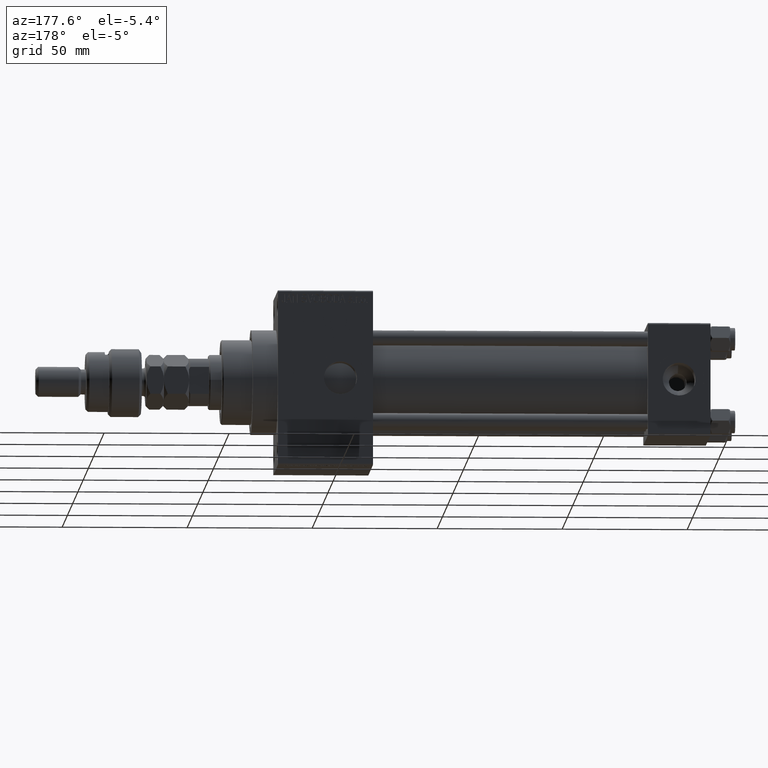
[diagram: clean part render]
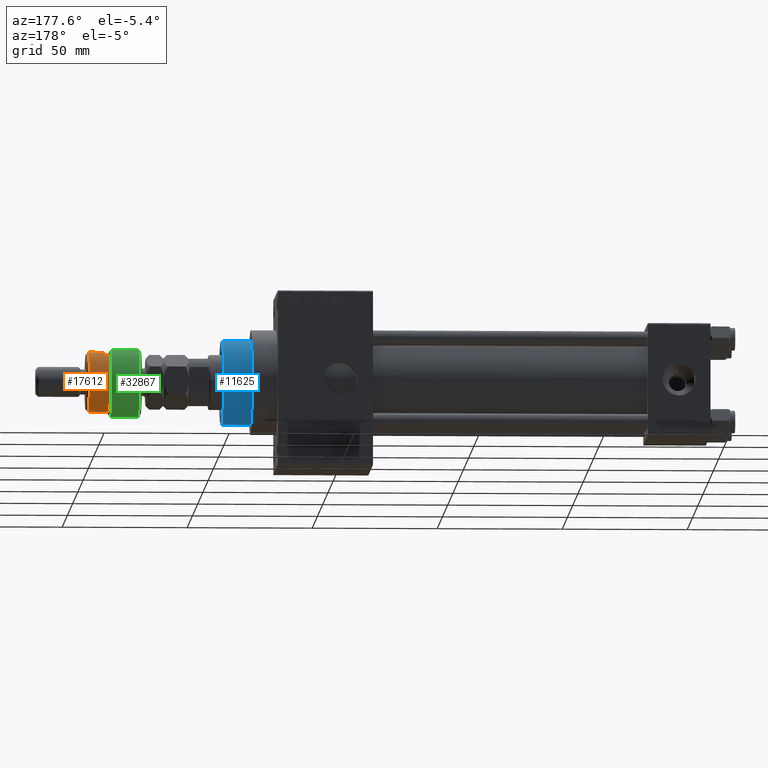
[diagram: same view with three faces highlighted in distinct colors, each labeled with its STEP entity id]
A machine part, auxiliary view with three faces highlighted in distinct colors.
Their STEP definitions:

[orange] entity #17612 — the highlighted cylindrical surface (edge-blend (fillet) strip) has radius 12 mm, axis along (-1, -0, 0).
#723 = CARTESIAN_POINT ( 'NONE',  ( -10.39230484541326760, 6.000000000000000000, 22.00000000000000000 ) ) ;
#1231 = CARTESIAN_POINT ( 'NONE',  ( 0.000000000000000000, 0.000000000000000000, 22.00000000000000000 ) ) ;
#1425 = EDGE_CURVE ( 'NONE', #29625, #15161, #12887, .T. ) ;
#3924 = CARTESIAN_POINT ( 'NONE',  ( -12.00000000000000178, 0.000000000000000000, 14.50000000000000000 ) ) ;
#4582 = AXIS2_PLACEMENT_3D ( 'NONE', #45040, #36900, #9298 ) ;
#4782 = DIRECTION ( 'NONE',  ( 0.000000000000000000, 0.000000000000000000, 1.000000000000000000 ) ) ;
#5032 = DIRECTION ( 'NONE',  ( 1.000000000000000000, 0.000000000000000000, 0.000000000000000000 ) ) ;
#5167 = FACE_OUTER_BOUND ( 'NONE', #24459, .T. ) ;
#9000 = CARTESIAN_POINT ( 'NONE',  ( 0.000000000000000000, 0.000000000000000000, 20.99999999999998224 ) ) ;
#9298 = DIRECTION ( 'NONE',  ( -1.000000000000000000, 0.000000000000000000, 0.000000000000000000 ) ) ;
#10669 = VERTEX_POINT ( 'NONE', #50707 ) ;
#12887 = CIRCLE ( 'NONE', #4582, 12.00000000000000178 ) ;
#13342 = CYLINDRICAL_SURFACE ( 'NONE', #22959, 12.00000000000000178 ) ;
#14201 = CARTESIAN_POINT ( 'NONE',  ( -12.00000000000000178, 0.000000000000000000, 20.99999999999998224 ) ) ;
#14847 = CARTESIAN_POINT ( 'NONE',  ( 12.00000000000000178, 1.469576158976824144E-15, 22.00000000000000000 ) ) ;
#15161 = VERTEX_POINT ( 'NONE', #39194 ) ;
#17612 = ADVANCED_FACE ( 'NONE', ( #5167 ), #13342, .T. ) ;
#18095 = ORIENTED_EDGE ( 'NONE', *, *, #19518, .F. ) ;
#19518 = EDGE_CURVE ( 'NONE', #30460, #29625, #51656, .T. ) ;
#20677 = VECTOR ( 'NONE', #31640, 1000.000000000000000 ) ;
#22959 = AXIS2_PLACEMENT_3D ( 'NONE', #1231, #29365, #25951 ) ;
#23160 = ORIENTED_EDGE ( 'NONE', *, *, #48698, .T. ) ;
#23578 = DIRECTION ( 'NONE',  ( -0.000000000000000000, -0.000000000000000000, -1.000000000000000000 ) ) ;
#24459 = EDGE_LOOP ( 'NONE', ( #26545, #23160, #25789, #42015, #40141, #18095 ) ) ;
#25044 = DIRECTION ( 'NONE',  ( 0.000000000000000000, 0.000000000000000000, -1.000000000000000000 ) ) ;
#25593 = VECTOR ( 'NONE', #29120, 1000.000000000000000 ) ;
#25789 = ORIENTED_EDGE ( 'NONE', *, *, #41217, .T. ) ;
#25951 = DIRECTION ( 'NONE',  ( -1.000000000000000000, 0.000000000000000000, 0.000000000000000000 ) ) ;
#26441 = VERTEX_POINT ( 'NONE', #46745 ) ;
#26545 = ORIENTED_EDGE ( 'NONE', *, *, #35900, .T. ) ;
#28466 = CARTESIAN_POINT ( 'NONE',  ( -10.39230484541326760, 6.000000000000000000, 13.00000000000000000 ) ) ;
#28710 = DIRECTION ( 'NONE',  ( 1.000000000000000000, 0.000000000000000000, 0.000000000000000000 ) ) ;
#29120 = DIRECTION ( 'NONE',  ( 0.000000000000000000, 0.000000000000000000, 1.000000000000000000 ) ) ;
#29365 = DIRECTION ( 'NONE',  ( -0.000000000000000000, -0.000000000000000000, -1.000000000000000000 ) ) ;
#29625 = VERTEX_POINT ( 'NONE', #3924 ) ;
#30460 = VERTEX_POINT ( 'NONE', #14201 ) ;
#31640 = DIRECTION ( 'NONE',  ( -0.000000000000000000, -0.000000000000000000, -1.000000000000000000 ) ) ;
#31888 = LINE ( 'NONE', #14847, #20677 ) ;
#35127 = CARTESIAN_POINT ( 'NONE',  ( -12.00000000000000178, 0.000000000000000000, 22.00000000000000000 ) ) ;
#35596 = AXIS2_PLACEMENT_3D ( 'NONE', #48398, #4782, #28710 ) ;
#35900 = EDGE_CURVE ( 'NONE', #30460, #26441, #49102, .T. ) ;
#36900 = DIRECTION ( 'NONE',  ( 0.000000000000000000, 0.000000000000000000, -1.000000000000000000 ) ) ;
#37732 = LINE ( 'NONE', #723, #25593 ) ;
#39194 = CARTESIAN_POINT ( 'NONE',  ( -10.39230484541326582, 5.999999999999998224, 14.50000000000000000 ) ) ;
#40141 = ORIENTED_EDGE ( 'NONE', *, *, #1425, .F. ) ;
#41217 = EDGE_CURVE ( 'NONE', #10669, #44390, #46484, .T. ) ;
#42015 = ORIENTED_EDGE ( 'NONE', *, *, #45090, .T. ) ;
#42124 = VECTOR ( 'NONE', #23578, 1000.000000000000000 ) ;
#42382 = AXIS2_PLACEMENT_3D ( 'NONE', #9000, #25044, #5032 ) ;
#44390 = VERTEX_POINT ( 'NONE', #28466 ) ;
#45040 = CARTESIAN_POINT ( 'NONE',  ( 0.000000000000000000, 0.000000000000000000, 14.50000000000000000 ) ) ;
#45090 = EDGE_CURVE ( 'NONE', #44390, #15161, #37732, .T. ) ;
#46484 = CIRCLE ( 'NONE', #35596, 12.00000000000000178 ) ;
#46745 = CARTESIAN_POINT ( 'NONE',  ( 12.00000000000000178, 1.469576158976824144E-15, 20.99999999999998224 ) ) ;
#48398 = CARTESIAN_POINT ( 'NONE',  ( 0.000000000000000000, 0.000000000000000000, 13.00000000000000000 ) ) ;
#48698 = EDGE_CURVE ( 'NONE', #26441, #10669, #31888, .T. ) ;
#49102 = CIRCLE ( 'NONE', #42382, 12.00000000000000178 ) ;
#50707 = CARTESIAN_POINT ( 'NONE',  ( 12.00000000000000178, 1.469576158976824144E-15, 13.00000000000000000 ) ) ;
#51656 = LINE ( 'NONE', #35127, #42124 ) ;

[blue] entity #11625 — the highlighted cylindrical surface (partial cylindrical patch) has radius 17 mm, axis along (-1, 0, 0).
#59 = AXIS2_PLACEMENT_3D ( 'NONE', #404, #3842, #15953 ) ;
#404 = CARTESIAN_POINT ( 'NONE',  ( 0.000000000000000000, 0.000000000000000000, 55.26000000000000512 ) ) ;
#617 = CARTESIAN_POINT ( 'NONE',  ( -17.00000000000000000, 0.000000000000000000, 55.26000000000000512 ) ) ;
#3113 = DIRECTION ( 'NONE',  ( 0.000000000000000000, 0.000000000000000000, -1.000000000000000000 ) ) ;
#3616 = CARTESIAN_POINT ( 'NONE',  ( 0.000000000000000000, 0.000000000000000000, 54.76000000000001222 ) ) ;
#3842 = DIRECTION ( 'NONE',  ( -0.000000000000000000, -0.000000000000000000, -1.000000000000000000 ) ) ;
#5892 = CARTESIAN_POINT ( 'NONE',  ( 17.00000000000000000, 2.081899558550500280E-15, 43.25999999999999801 ) ) ;
#7068 = AXIS2_PLACEMENT_3D ( 'NONE', #26799, #11281, #27580 ) ;
#11281 = DIRECTION ( 'NONE',  ( 0.000000000000000000, 0.000000000000000000, 1.000000000000000000 ) ) ;
#11625 = ADVANCED_FACE ( 'NONE', ( #19884 ), #47955, .T. ) ;
#11843 = EDGE_CURVE ( 'NONE', #13548, #23147, #48930, .T. ) ;
#12455 = DIRECTION ( 'NONE',  ( -0.000000000000000000, -0.000000000000000000, -1.000000000000000000 ) ) ;
#13548 = VERTEX_POINT ( 'NONE', #43340 ) ;
#13591 = EDGE_LOOP ( 'NONE', ( #22275, #40118, #40178, #42076 ) ) ;
#15953 = DIRECTION ( 'NONE',  ( -1.000000000000000000, 0.000000000000000000, 0.000000000000000000 ) ) ;
#16318 = VERTEX_POINT ( 'NONE', #5892 ) ;
#16337 = VECTOR ( 'NONE', #51049, 1000.000000000000000 ) ;
#19163 = DIRECTION ( 'NONE',  ( 1.000000000000000000, 0.000000000000000000, 0.000000000000000000 ) ) ;
#19884 = FACE_OUTER_BOUND ( 'NONE', #13591, .T. ) ;
#22275 = ORIENTED_EDGE ( 'NONE', *, *, #44321, .F. ) ;
#22451 = CARTESIAN_POINT ( 'NONE',  ( 17.00000000000000000, 2.081899558550500280E-15, 55.26000000000000512 ) ) ;
#23147 = VERTEX_POINT ( 'NONE', #27804 ) ;
#26799 = CARTESIAN_POINT ( 'NONE',  ( 0.000000000000000000, 0.000000000000000000, 43.25999999999999801 ) ) ;
#27273 = CARTESIAN_POINT ( 'NONE',  ( 17.00000000000000000, 2.081899558550500280E-15, 54.76000000000001222 ) ) ;
#27580 = DIRECTION ( 'NONE',  ( 1.000000000000000000, 0.000000000000000000, 0.000000000000000000 ) ) ;
#27671 = VERTEX_POINT ( 'NONE', #27273 ) ;
#27804 = CARTESIAN_POINT ( 'NONE',  ( -17.00000000000000000, 0.000000000000000000, 43.25999999999999801 ) ) ;
#29433 = VECTOR ( 'NONE', #12455, 1000.000000000000000 ) ;
#29720 = CIRCLE ( 'NONE', #7068, 17.00000000000000000 ) ;
#29895 = CIRCLE ( 'NONE', #40807, 17.00000000000000000 ) ;
#33033 = EDGE_CURVE ( 'NONE', #23147, #16318, #29720, .T. ) ;
#38692 = LINE ( 'NONE', #22451, #16337 ) ;
#40118 = ORIENTED_EDGE ( 'NONE', *, *, #48347, .T. ) ;
#40178 = ORIENTED_EDGE ( 'NONE', *, *, #11843, .T. ) ;
#40807 = AXIS2_PLACEMENT_3D ( 'NONE', #3616, #3113, #19163 ) ;
#42076 = ORIENTED_EDGE ( 'NONE', *, *, #33033, .T. ) ;
#43340 = CARTESIAN_POINT ( 'NONE',  ( -17.00000000000000000, 0.000000000000000000, 54.76000000000001222 ) ) ;
#44321 = EDGE_CURVE ( 'NONE', #27671, #16318, #38692, .T. ) ;
#47955 = CYLINDRICAL_SURFACE ( 'NONE', #59, 17.00000000000000000 ) ;
#48347 = EDGE_CURVE ( 'NONE', #27671, #13548, #29895, .T. ) ;
#48930 = LINE ( 'NONE', #617, #29433 ) ;
#51049 = DIRECTION ( 'NONE',  ( -0.000000000000000000, -0.000000000000000000, -1.000000000000000000 ) ) ;

[green] entity #32867 — the highlighted cylindrical surface (edge-blend (fillet) strip) has radius 14 mm, axis along (-1, -0, 0).
#286 = AXIS2_PLACEMENT_3D ( 'NONE', #42697, #26714, #2506 ) ;
#690 = CARTESIAN_POINT ( 'NONE',  ( -12.64911064067351809, 6.000000000000000000, 12.00000000000002842 ) ) ;
#1103 = CIRCLE ( 'NONE', #286, 14.00000000000000000 ) ;
#2155 = AXIS2_PLACEMENT_3D ( 'NONE', #51567, #11422, #7709 ) ;
#2335 = AXIS2_PLACEMENT_3D ( 'NONE', #22027, #42228, #14669 ) ;
#2506 = DIRECTION ( 'NONE',  ( 1.000000000000000000, 0.000000000000000000, 0.000000000000000000 ) ) ;
#2954 = VECTOR ( 'NONE', #37365, 1000.000000000000000 ) ;
#4384 = CARTESIAN_POINT ( 'NONE',  ( -12.64911064067351809, -5.999999999999999112, 1.000000000000021760 ) ) ;
#4707 = ORIENTED_EDGE ( 'NONE', *, *, #25188, .F. ) ;
#7001 = CARTESIAN_POINT ( 'NONE',  ( 0.000000000000000000, 0.000000000000000000, 1.000000000000018208 ) ) ;
#7033 = CARTESIAN_POINT ( 'NONE',  ( 14.00000000000000000, 0.000000000000000000, 1.000000000000018208 ) ) ;
#7709 = DIRECTION ( 'NONE',  ( -1.000000000000000000, 0.000000000000000000, 0.000000000000000000 ) ) ;
#9057 = VERTEX_POINT ( 'NONE', #690 ) ;
#9257 = LINE ( 'NONE', #41292, #2954 ) ;
#10116 = EDGE_CURVE ( 'NONE', #9057, #38099, #51013, .T. ) ;
#10200 = VERTEX_POINT ( 'NONE', #7033 ) ;
#11422 = DIRECTION ( 'NONE',  ( -0.000000000000000000, -0.000000000000000000, -1.000000000000000000 ) ) ;
#14122 = ORIENTED_EDGE ( 'NONE', *, *, #16522, .T. ) ;
#14669 = DIRECTION ( 'NONE',  ( 1.000000000000000000, 0.000000000000000000, 0.000000000000000000 ) ) ;
#14974 = EDGE_LOOP ( 'NONE', ( #4707, #40692, #14122, #32258, #25262 ) ) ;
#15648 = CARTESIAN_POINT ( 'NONE',  ( -12.64911064067351809, -5.999999999999999112, 14.50000000000000000 ) ) ;
#16522 = EDGE_CURVE ( 'NONE', #38099, #36100, #31126, .T. ) ;
#16561 = CARTESIAN_POINT ( 'NONE',  ( -12.64911064067351809, 6.000000000000000000, 1.000000000000021760 ) ) ;
#17813 = CARTESIAN_POINT ( 'NONE',  ( -12.64911064067351809, -5.999999999999999112, 12.00000000000002842 ) ) ;
#18716 = VECTOR ( 'NONE', #38724, 1000.000000000000000 ) ;
#18844 = DIRECTION ( 'NONE',  ( -0.000000000000000000, -0.000000000000000000, 1.000000000000000000 ) ) ;
#20064 = FACE_OUTER_BOUND ( 'NONE', #14974, .T. ) ;
#20906 = EDGE_CURVE ( 'NONE', #36100, #10200, #1103, .T. ) ;
#22027 = CARTESIAN_POINT ( 'NONE',  ( 0.000000000000000000, 0.000000000000000000, 12.00000000000002842 ) ) ;
#25188 = EDGE_CURVE ( 'NONE', #9057, #35094, #9257, .T. ) ;
#25262 = ORIENTED_EDGE ( 'NONE', *, *, #51816, .T. ) ;
#26714 = DIRECTION ( 'NONE',  ( -0.000000000000000000, -0.000000000000000000, 1.000000000000000000 ) ) ;
#27522 = CIRCLE ( 'NONE', #50959, 14.00000000000000000 ) ;
#31126 = LINE ( 'NONE', #15648, #18716 ) ;
#32258 = ORIENTED_EDGE ( 'NONE', *, *, #20906, .T. ) ;
#32867 = ADVANCED_FACE ( 'NONE', ( #20064 ), #44463, .T. ) ;
#33791 = DIRECTION ( 'NONE',  ( 1.000000000000000000, 0.000000000000000000, 0.000000000000000000 ) ) ;
#35094 = VERTEX_POINT ( 'NONE', #16561 ) ;
#36100 = VERTEX_POINT ( 'NONE', #4384 ) ;
#37365 = DIRECTION ( 'NONE',  ( -0.000000000000000000, -0.000000000000000000, -1.000000000000000000 ) ) ;
#38099 = VERTEX_POINT ( 'NONE', #17813 ) ;
#38724 = DIRECTION ( 'NONE',  ( -0.000000000000000000, -0.000000000000000000, -1.000000000000000000 ) ) ;
#40692 = ORIENTED_EDGE ( 'NONE', *, *, #10116, .T. ) ;
#41292 = CARTESIAN_POINT ( 'NONE',  ( -12.64911064067351809, 6.000000000000000000, 14.50000000000000000 ) ) ;
#42228 = DIRECTION ( 'NONE',  ( 0.000000000000000000, 0.000000000000000000, -1.000000000000000000 ) ) ;
#42697 = CARTESIAN_POINT ( 'NONE',  ( 0.000000000000000000, 0.000000000000000000, 1.000000000000018208 ) ) ;
#44463 = CYLINDRICAL_SURFACE ( 'NONE', #2155, 14.00000000000000000 ) ;
#50959 = AXIS2_PLACEMENT_3D ( 'NONE', #7001, #18844, #33791 ) ;
#51013 = CIRCLE ( 'NONE', #2335, 14.00000000000000000 ) ;
#51567 = CARTESIAN_POINT ( 'NONE',  ( 0.000000000000000000, 0.000000000000000000, 13.00000000000000000 ) ) ;
#51816 = EDGE_CURVE ( 'NONE', #10200, #35094, #27522, .T. ) ;